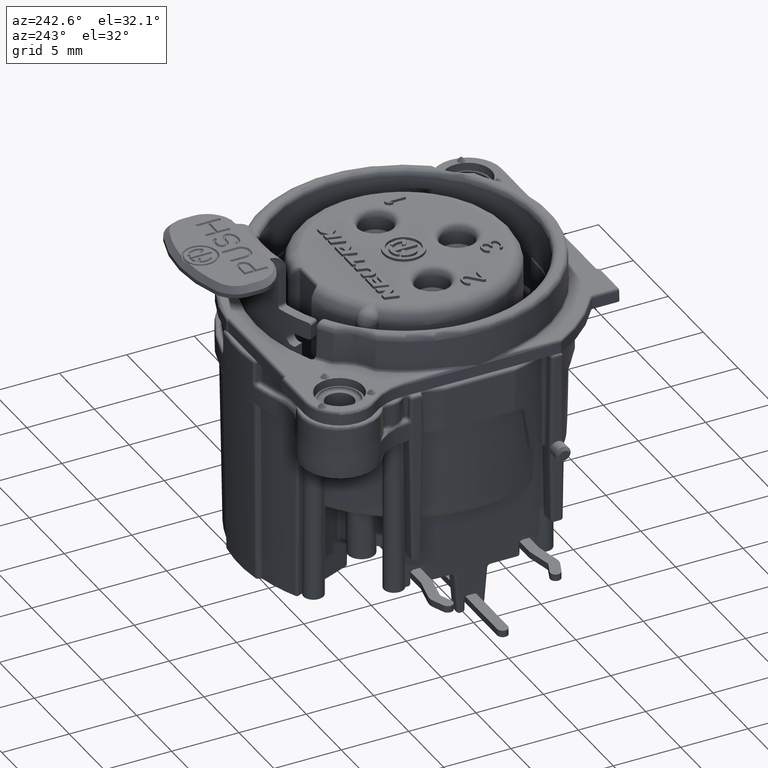
[diagram: clean part render]
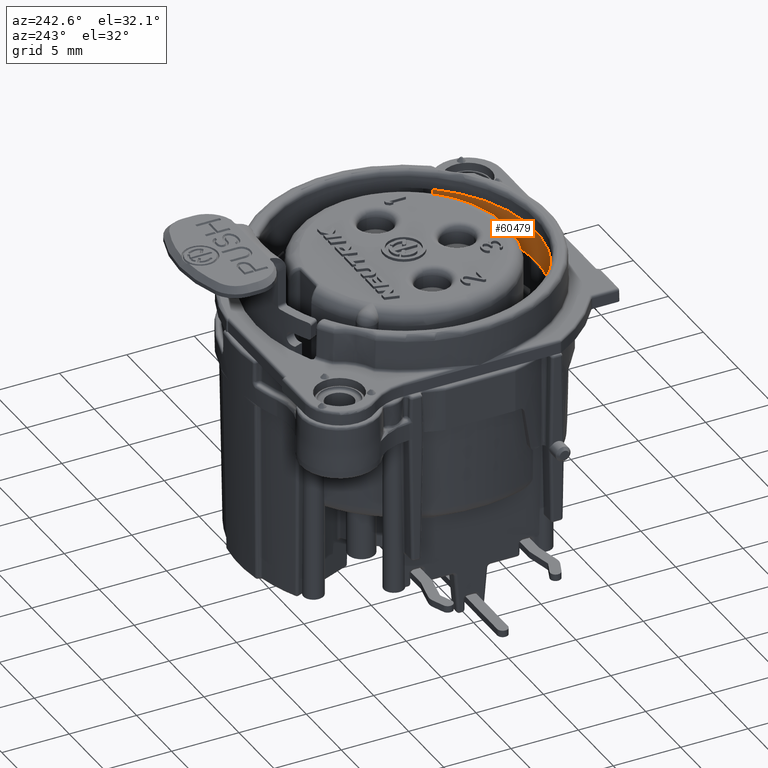
[diagram: same view with one face highlighted and labeled with its STEP entity id]
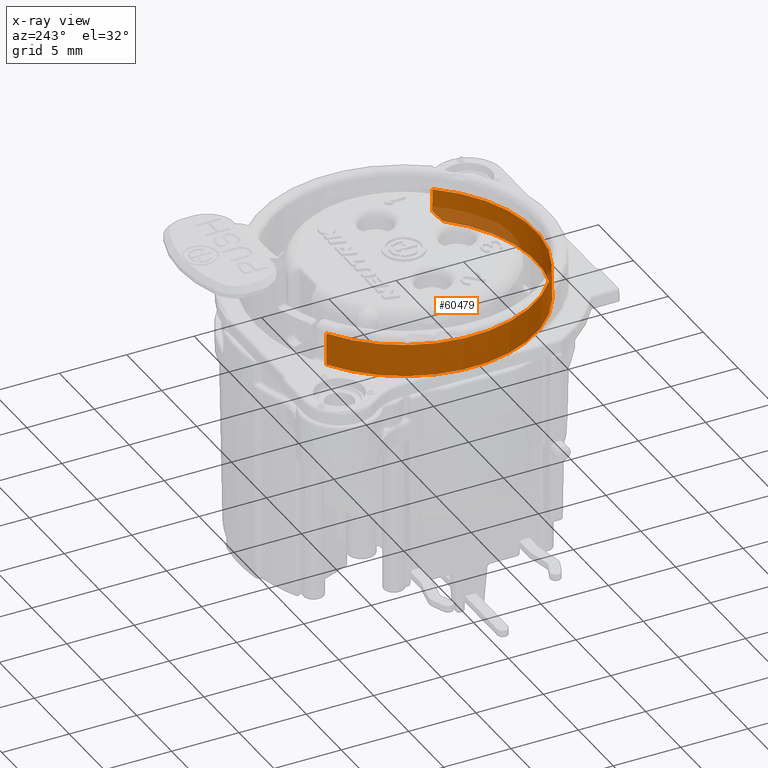
[diagram: x-ray of the same camera — body ghosted, the highlighted face saturated]
A machine part, auxiliary view. The second image highlights one B-rep face of the part: STEP entity #60479.
The next image is the same camera in x-ray: the body ghosted, the highlighted face saturated — about 10% of this face is hidden behind the body in this view.
In plain terms, the highlighted conical surface has half-angle 1 deg.
Its self-contained STEP definition (entity closure, byte-faithful):
#3760=CARTESIAN_POINT('',(7.209259483554E0,-6.626290781747E0,3.450000000190E0));
#3768=CARTESIAN_POINT('',(0.E0,0.E0,3.45E0));
#3769=DIRECTION('',(0.E0,0.E0,-1.E0));
#3770=DIRECTION('',(7.362478080287E-1,-6.767120252906E-1,0.E0));
#3771=AXIS2_PLACEMENT_3D('',#3768,#3769,#3770);
#3780=CARTESIAN_POINT('',(-5.082243959656E0,8.369704195842E0,3.45E0));
#16093=CARTESIAN_POINT('',(-5.082243959656E0,8.369704195842E0,3.45E0));
#16094=CARTESIAN_POINT('',(-5.078319026377E0,8.367093063522E0,
3.694572519370E0));
#16095=CARTESIAN_POINT('',(-5.070234847598E0,8.361714140323E0,
4.198285089371E0));
#16096=CARTESIAN_POINT('',(-5.057615910316E0,8.353315375824E0,
4.984441992729E0));
#16097=CARTESIAN_POINT('',(-5.048453585474E0,8.347215220174E0,
5.555167660622E0));
#16098=CARTESIAN_POINT('',(-5.043720000087E0,8.344063072672E0,
5.850000000008E0));
#16100=CARTESIAN_POINT('',(7.664038295281E0,-6.075772659822E0,
4.119303557264E0));
#16101=CARTESIAN_POINT('',(7.621577241537E0,-6.131227834337E0,
4.051881197640E0));
#16102=CARTESIAN_POINT('',(7.531715935555E0,-6.246084130619E0,
3.912239959806E0));
#16103=CARTESIAN_POINT('',(7.382052566065E0,-6.428414910246E0,
3.690567037690E0));
#16104=CARTESIAN_POINT('',(7.269123486722E0,-6.559051471509E0,
3.531745676092E0));
#16105=CARTESIAN_POINT('',(7.209259483554E0,-6.626290781747E0,
3.450000000190E0));
#16107=CARTESIAN_POINT('',(7.625750436339E0,-6.075395483644E0,
5.850000000003E0));
#16108=CARTESIAN_POINT('',(7.629700251014E0,-6.075434475057E0,
5.671624389052E0));
#16109=CARTESIAN_POINT('',(7.637800613473E0,-6.075514388698E0,
5.305704260403E0));
#16110=CARTESIAN_POINT('',(7.650348707456E0,-6.075638010005E0,
4.738530640325E0));
#16111=CARTESIAN_POINT('',(7.659385969481E0,-6.075726926807E0,
4.329792599668E0));
#16112=CARTESIAN_POINT('',(7.664038295281E0,-6.075772659822E0,
4.119303557264E0));
#16274=CARTESIAN_POINT('',(0.E0,0.E0,5.85E0));
#16275=DIRECTION('',(0.E0,0.E0,1.E0));
#16276=DIRECTION('',(-5.173046153935E-1,8.558013407869E-1,0.E0));
#16277=AXIS2_PLACEMENT_3D('',#16274,#16275,#16276);
#26019=CARTESIAN_POINT('',(7.625750436339E0,-6.075395483644E0,
5.850000000003E0));
#39148=VERTEX_POINT('',#26019);
#39191=CARTESIAN_POINT('',(7.664038310679E0,-6.075772657945E0,
4.119303561437E0));
#39192=VERTEX_POINT('',#39191);
#39335=CARTESIAN_POINT('',(-5.043720000087E0,8.344063072672E0,
5.850000000008E0));
#39336=VERTEX_POINT('',#39335);
#39435=VERTEX_POINT('',#3760);
#39451=VERTEX_POINT('',#3780);
#60464=CARTESIAN_POINT('',(0.E0,0.E0,4.650000002742E0));
#60465=DIRECTION('',(0.E0,0.E0,-1.E0));
#60466=DIRECTION('',(-1.E0,0.E0,0.E0));
#60467=AXIS2_PLACEMENT_3D('',#60464,#60465,#60466);
#60468=CONICAL_SURFACE('',#60467,9.770946077866E0,1.E0);
#60469=ORIENTED_EDGE('',*,*,#60456,.F.);
#60470=ORIENTED_EDGE('',*,*,#44993,.F.);
#60472=ORIENTED_EDGE('',*,*,#60471,.F.);
#60474=ORIENTED_EDGE('',*,*,#60473,.F.);
#60476=ORIENTED_EDGE('',*,*,#60475,.F.);
#60477=EDGE_LOOP('',(#60469,#60470,#60472,#60474,#60476));
#60478=FACE_OUTER_BOUND('',#60477,.F.);
#3772=CIRCLE('',#3771,9.791892155828E0);
#16099=B_SPLINE_CURVE_WITH_KNOTS('',3,(#16093,#16094,#16095,#16096,#16097,
#16098),.UNSPECIFIED.,.F.,.F.,(4,1,1,4),(0.E0,3.333333333333E-1,
6.666666666667E-1,1.E0),.UNSPECIFIED.);
#16106=B_SPLINE_CURVE_WITH_KNOTS('',3,(#16100,#16101,#16102,#16103,#16104,
#16105),.UNSPECIFIED.,.F.,.F.,(4,1,1,4),(0.E0,3.333333333333E-1,
6.666666666667E-1,1.E0),.UNSPECIFIED.);
#16113=B_SPLINE_CURVE_WITH_KNOTS('',3,(#16107,#16108,#16109,#16110,#16111,
#16112),.UNSPECIFIED.,.F.,.F.,(4,1,1,4),(0.E0,3.333333333333E-1,
6.666666666667E-1,1.E0),.UNSPECIFIED.);
#16278=CIRCLE('',#16277,9.75E0);
#44993=EDGE_CURVE('',#39435,#39451,#3772,.T.);
#60456=EDGE_CURVE('',#39451,#39336,#16099,.T.);
#60471=EDGE_CURVE('',#39192,#39435,#16106,.T.);
#60473=EDGE_CURVE('',#39148,#39192,#16113,.T.);
#60475=EDGE_CURVE('',#39336,#39148,#16278,.T.);
#60479=ADVANCED_FACE('',(#60478),#60468,.F.);